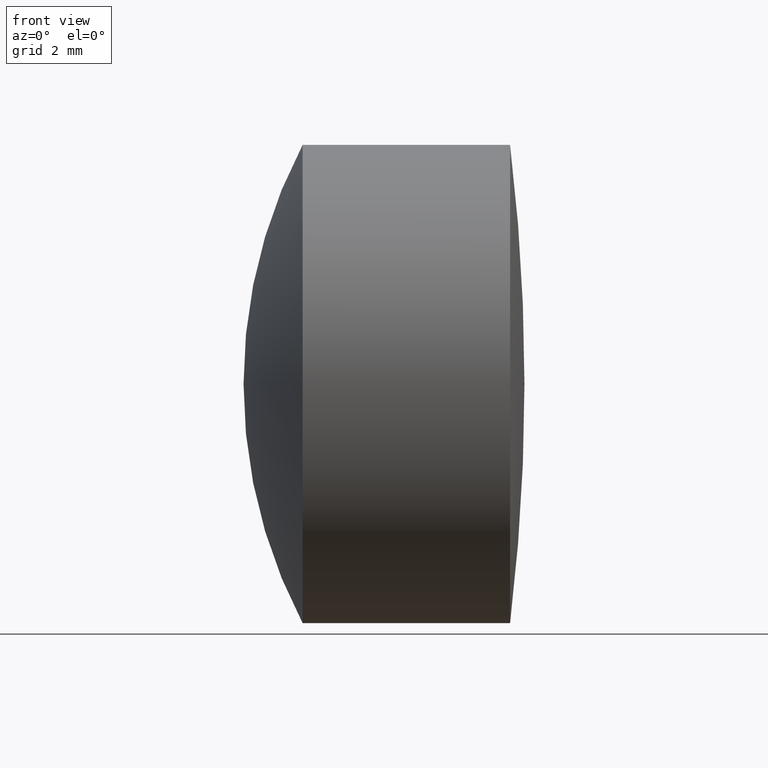
[diagram: clean part render]
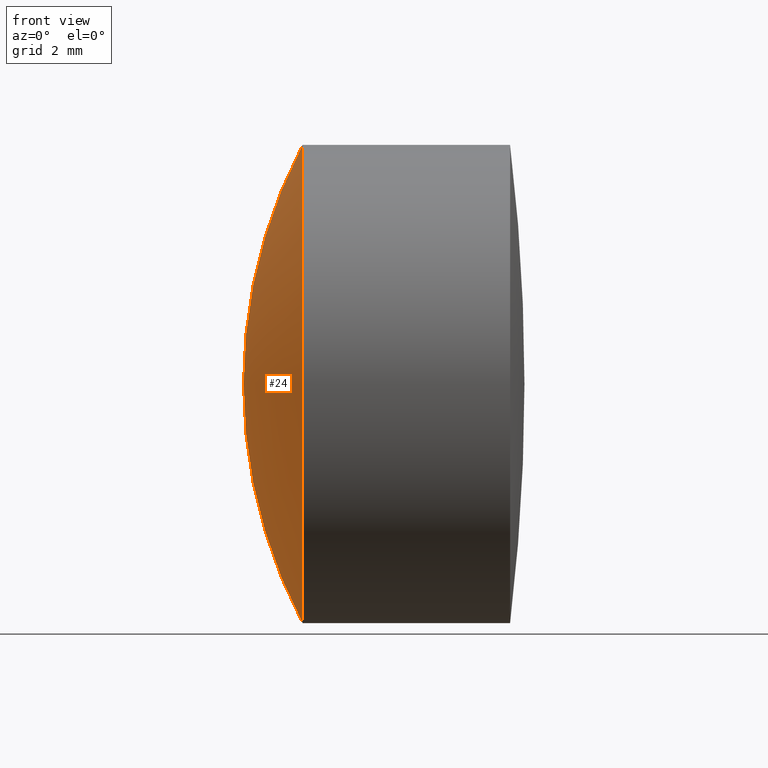
[diagram: same view with one face highlighted and labeled with its STEP entity id]
A machine part, front view. The second image highlights one B-rep face of the part: STEP entity #24.
In plain terms, the highlighted spherical surface has radius 17.179 mm.
Its self-contained STEP definition (entity closure, byte-faithful):
#3 = ORIENTED_EDGE ( 'NONE', *, *, #266, .T. ) ;
#10 = AXIS2_PLACEMENT_3D ( 'NONE', #198, #161, #295 ) ;
#16 = VERTEX_POINT ( 'NONE', #154 ) ;
#17 = DIRECTION ( 'NONE',  ( 0.0000000000000000000, 1.224646799147353200E-016, -1.000000000000000000 ) ) ;
#24 = ADVANCED_FACE ( 'NONE', ( #134 ), #257, .T. ) ;
#36 = DIRECTION ( 'NONE',  ( 0.0000000000000000000, 0.0000000000000000000, -1.000000000000000000 ) ) ;
#40 = ORIENTED_EDGE ( 'NONE', *, *, #302, .T. ) ;
#51 = DIRECTION ( 'NONE',  ( 0.0000000000000000000, 0.0000000000000000000, 1.000000000000000000 ) ) ;
#53 = DIRECTION ( 'NONE',  ( -1.000000000000000000, -0.0000000000000000000, -0.0000000000000000000 ) ) ;
#55 = EDGE_CURVE ( 'NONE', #16, #158, #330, .T. ) ;
#64 = CARTESIAN_POINT ( 'NONE',  ( 14.09347655816146400, 0.0000000000000000000, 0.0000000000000000000 ) ) ;
#85 = AXIS2_PLACEMENT_3D ( 'NONE', #322, #293, #36 ) ;
#94 = CIRCLE ( 'NONE', #171, 8.000000000000000000 ) ;
#105 = VERTEX_POINT ( 'NONE', #287 ) ;
#134 = FACE_OUTER_BOUND ( 'NONE', #326, .T. ) ;
#148 = CIRCLE ( 'NONE', #196, 17.17900000000000200 ) ;
#154 = CARTESIAN_POINT ( 'NONE',  ( 14.09347655816146400, 0.0000000000000000000, -8.000000000000000000 ) ) ;
#158 = VERTEX_POINT ( 'NONE', #270 ) ;
#161 = DIRECTION ( 'NONE',  ( 0.0000000000000000000, 1.000000000000000000, -0.0000000000000000000 ) ) ;
#171 = AXIS2_PLACEMENT_3D ( 'NONE', #64, #53, #51 ) ;
#192 = DIRECTION ( 'NONE',  ( 0.0000000000000000000, -1.000000000000000000, -1.224646799147353200E-016 ) ) ;
#196 = AXIS2_PLACEMENT_3D ( 'NONE', #221, #192, #17 ) ;
#198 = CARTESIAN_POINT ( 'NONE',  ( 29.29604347957312900, 0.0000000000000000000, 2.710505431219307800E-017 ) ) ;
#221 = CARTESIAN_POINT ( 'NONE',  ( 29.29604347957312900, 0.0000000000000000000, 2.710505431219307800E-017 ) ) ;
#257 = SPHERICAL_SURFACE ( 'NONE', #85, 17.17900000000000200 ) ;
#266 = EDGE_CURVE ( 'NONE', #16, #105, #94, .T. ) ;
#270 = CARTESIAN_POINT ( 'NONE',  ( 12.11704347957312500, 0.0000000000000000000, -1.024805313815426000E-015 ) ) ;
#287 = CARTESIAN_POINT ( 'NONE',  ( 14.09347655816146400, -9.797174393178823700E-016, 8.000000000000000000 ) ) ;
#292 = ORIENTED_EDGE ( 'NONE', *, *, #55, .F. ) ;
#293 = DIRECTION ( 'NONE',  ( -0.0000000000000000000, -1.000000000000000000, -0.0000000000000000000 ) ) ;
#295 = DIRECTION ( 'NONE',  ( 0.0000000000000000000, 0.0000000000000000000, 1.000000000000000000 ) ) ;
#302 = EDGE_CURVE ( 'NONE', #105, #158, #148, .T. ) ;
#322 = CARTESIAN_POINT ( 'NONE',  ( 29.29604347957312900, 0.0000000000000000000, 2.710505431219307800E-017 ) ) ;
#326 = EDGE_LOOP ( 'NONE', ( #3, #40, #292 ) ) ;
#330 = CIRCLE ( 'NONE', #10, 17.17900000000000200 ) ;